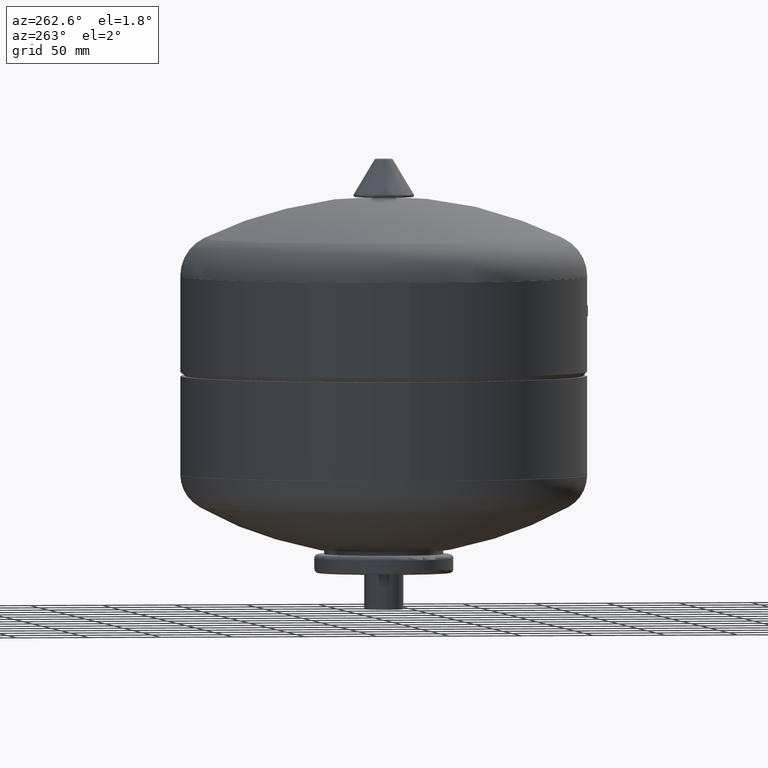
[diagram: clean part render]
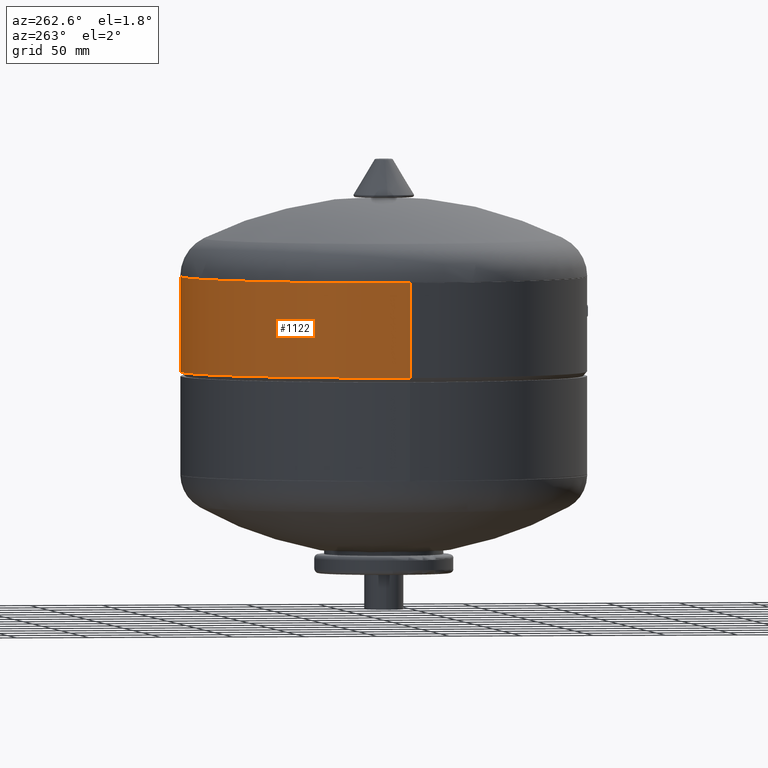
[diagram: same view with one face highlighted and labeled with its STEP entity id]
A machine part, auxiliary view. The second image highlights one B-rep face of the part: STEP entity #1122.
In plain terms, the highlighted cylindrical surface (partial cylindrical patch) has radius 140 mm, axis along (0, 0, 1).
Its self-contained STEP definition (entity closure, byte-faithful):
#992=CARTESIAN_POINT('',(140.0,0.0,229.0));
#993=VERTEX_POINT('',#992);
#994=CARTESIAN_POINT('',(140.0,0.0,163.499999999999970));
#995=VERTEX_POINT('',#994);
#996=CARTESIAN_POINT('',(140.0,0.0,229.0));
#997=DIRECTION('',(0.0,0.0,-1.0));
#998=VECTOR('',#997,65.500000000000028);
#999=LINE('',#996,#998);
#1000=EDGE_CURVE('',#993,#995,#999,.T.);
#1002=CARTESIAN_POINT('',(-140.0,-1.714449E-014,229.0));
#1003=VERTEX_POINT('',#1002);
#1011=CARTESIAN_POINT('',(-139.999999999999970,-1.714449E-014,163.500000000000000));
#1012=VERTEX_POINT('',#1011);
#1013=CARTESIAN_POINT('',(-140.0,-1.714449E-014,229.0));
#1014=DIRECTION('',(0.0,0.0,-1.0));
#1015=VECTOR('',#1014,65.500000000000000);
#1016=LINE('',#1013,#1015);
#1017=EDGE_CURVE('',#1003,#1012,#1016,.T.);
#1095=CARTESIAN_POINT('',(0.0,0.0,163.499999999999970));
#1096=DIRECTION('',(0.0,0.0,1.0));
#1097=DIRECTION('',(1.0,0.0,0.0));
#1098=AXIS2_PLACEMENT_3D('',#1095,#1096,#1097);
#1099=CIRCLE('',#1098,140.0);
#1100=EDGE_CURVE('',#995,#1012,#1099,.T.);
#1105=CARTESIAN_POINT('',(0.0,0.0,224.0));
#1106=DIRECTION('',(0.0,0.0,1.0));
#1107=DIRECTION('',(1.0,0.0,0.0));
#1108=AXIS2_PLACEMENT_3D('',#1105,#1106,#1107);
#1109=CYLINDRICAL_SURFACE('',#1108,140.0);
#1110=ORIENTED_EDGE('',*,*,#1000,.T.);
#1111=ORIENTED_EDGE('',*,*,#1100,.T.);
#1112=ORIENTED_EDGE('',*,*,#1017,.F.);
#1113=CARTESIAN_POINT('',(0.0,0.0,229.0));
#1114=DIRECTION('',(0.0,0.0,-1.0));
#1115=DIRECTION('',(1.0,0.0,0.0));
#1116=AXIS2_PLACEMENT_3D('',#1113,#1114,#1115);
#1117=CIRCLE('',#1116,140.0);
#1118=EDGE_CURVE('',#1003,#993,#1117,.T.);
#1119=ORIENTED_EDGE('',*,*,#1118,.T.);
#1120=EDGE_LOOP('',(#1110,#1111,#1112,#1119));
#1121=FACE_OUTER_BOUND('',#1120,.T.);
#1122=ADVANCED_FACE('',(#1121),#1109,.T.);